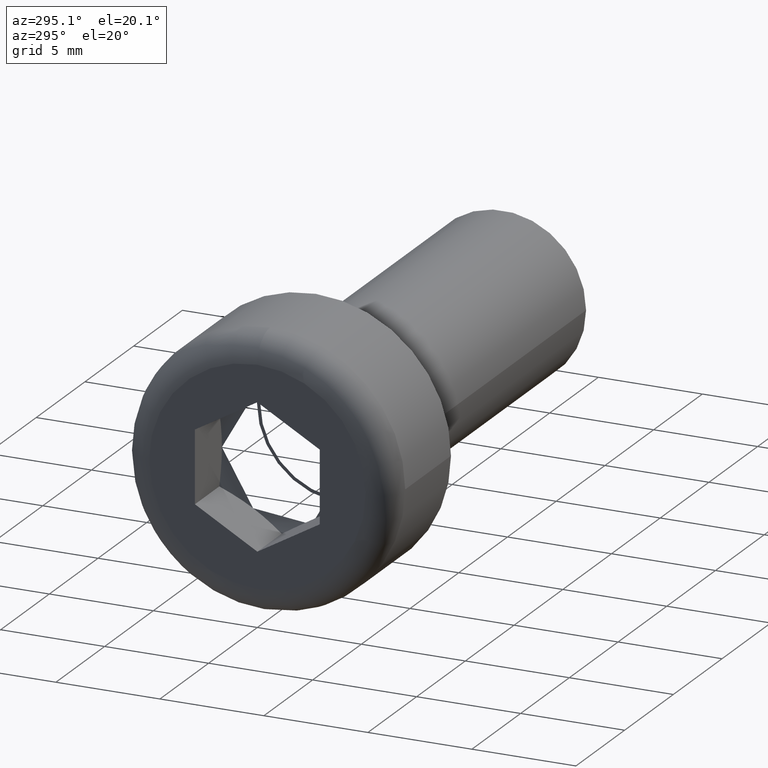
[diagram: clean part render]
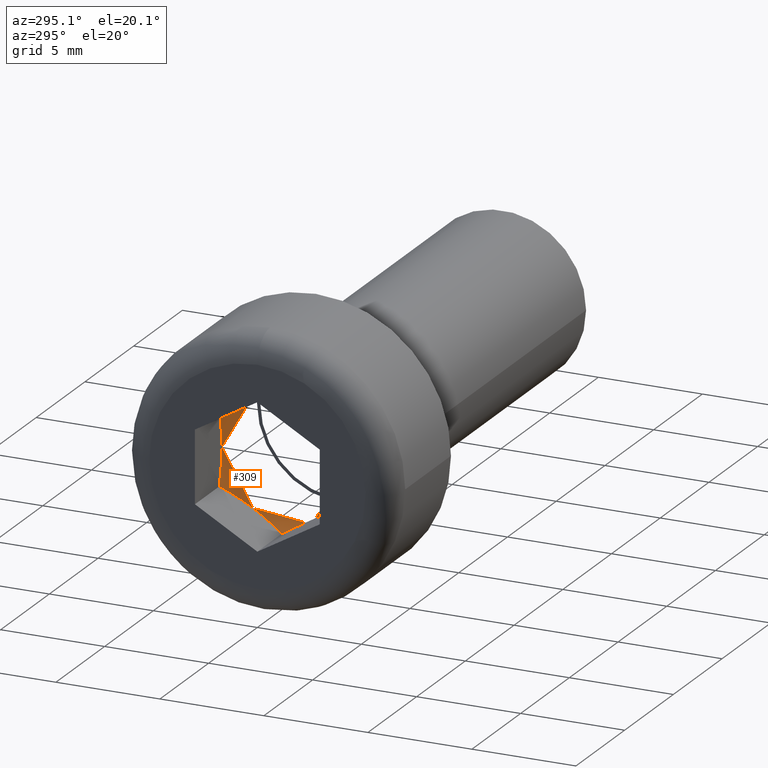
[diagram: same view with one face highlighted and labeled with its STEP entity id]
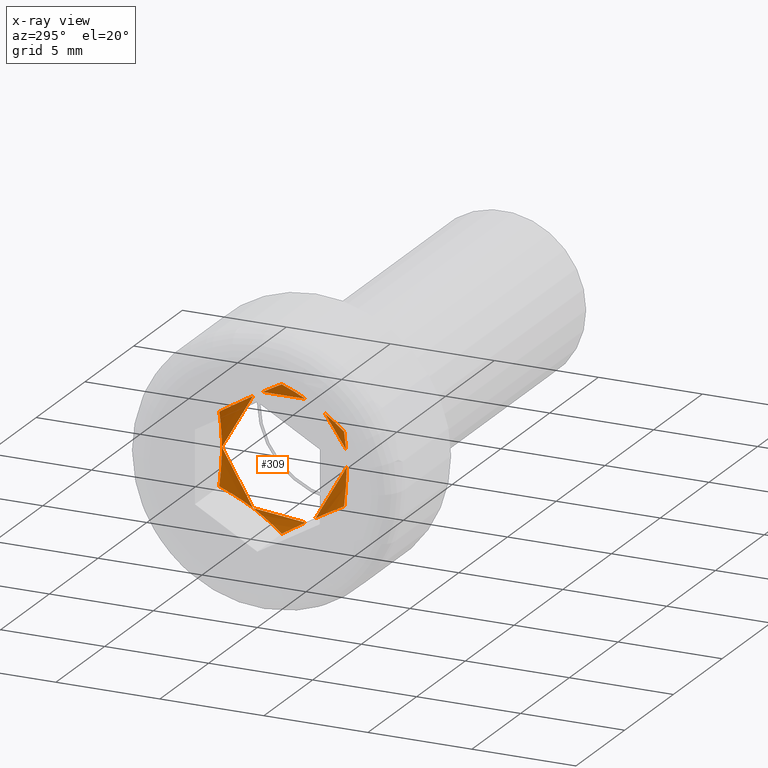
[diagram: x-ray of the same camera — body ghosted, the highlighted face saturated]
A machine part, auxiliary view. The second image highlights one B-rep face of the part: STEP entity #309.
The next image is the same camera in x-ray: the body ghosted, the highlighted face saturated — about 0% of this face is hidden behind the body in this view.
In plain terms, the highlighted conical surface has half-angle 60 deg.
Its self-contained STEP definition (entity closure, byte-faithful):
#42=CONICAL_SURFACE('',#346,1.8,1.0471975511966);
#51=FACE_OUTER_BOUND('',#68,.T.);
#68=EDGE_LOOP('',(#228,#229,#230,#231,#232,#233,#234,#235,#236));
#94=LINE('',#526,#112);
#112=VECTOR('',#405,1.8);
#118=(
BOUNDED_CURVE()
B_SPLINE_CURVE(2,(#475,#476,#477),.UNSPECIFIED.,.F.,.F.)
B_SPLINE_CURVE_WITH_KNOTS((3,3),(0.0224841371605266,0.381496060373957),
 .UNSPECIFIED.)
CURVE()
GEOMETRIC_REPRESENTATION_ITEM()
RATIONAL_B_SPLINE_CURVE((1.02102355330306,1.17897644669694,1.02102355330306))
REPRESENTATION_ITEM('')
);
#119=(
BOUNDED_CURVE()
B_SPLINE_CURVE(2,(#485,#486,#487),.UNSPECIFIED.,.F.,.F.)
B_SPLINE_CURVE_WITH_KNOTS((3,3),(0.0224841371605266,0.381496060373957),
 .UNSPECIFIED.)
CURVE()
GEOMETRIC_REPRESENTATION_ITEM()
RATIONAL_B_SPLINE_CURVE((1.02102355330306,1.17897644669694,1.02102355330306))
REPRESENTATION_ITEM('')
);
#120=(
BOUNDED_CURVE()
B_SPLINE_CURVE(2,(#493,#494,#495),.UNSPECIFIED.,.F.,.F.)
B_SPLINE_CURVE_WITH_KNOTS((3,3),(0.0224841371605264,0.381496060373957),
 .UNSPECIFIED.)
CURVE()
GEOMETRIC_REPRESENTATION_ITEM()
RATIONAL_B_SPLINE_CURVE((1.02102355330306,1.17897644669694,1.02102355330306))
REPRESENTATION_ITEM('')
);
#121=(
BOUNDED_CURVE()
B_SPLINE_CURVE(2,(#501,#502,#503),.UNSPECIFIED.,.F.,.F.)
B_SPLINE_CURVE_WITH_KNOTS((3,3),(0.0224841371605265,0.201990098767242),
 .UNSPECIFIED.)
CURVE()
GEOMETRIC_REPRESENTATION_ITEM()
RATIONAL_B_SPLINE_CURVE((1.02102355330306,1.1,1.1))
REPRESENTATION_ITEM('')
);
#122=(
BOUNDED_CURVE()
B_SPLINE_CURVE(2,(#508,#509,#510),.UNSPECIFIED.,.F.,.F.)
B_SPLINE_CURVE_WITH_KNOTS((3,3),(0.201990098767242,0.381496060373957),
 .UNSPECIFIED.)
CURVE()
GEOMETRIC_REPRESENTATION_ITEM()
RATIONAL_B_SPLINE_CURVE((1.1,1.1,1.02102355330306))
REPRESENTATION_ITEM('')
);
#123=(
BOUNDED_CURVE()
B_SPLINE_CURVE(2,(#513,#514,#515),.UNSPECIFIED.,.F.,.F.)
B_SPLINE_CURVE_WITH_KNOTS((3,3),(0.0224841371605265,0.381496060373957),
 .UNSPECIFIED.)
CURVE()
GEOMETRIC_REPRESENTATION_ITEM()
RATIONAL_B_SPLINE_CURVE((1.02102355330306,1.17897644669694,1.02102355330306))
REPRESENTATION_ITEM('')
);
#124=(
BOUNDED_CURVE()
B_SPLINE_CURVE(2,(#520,#521,#522),.UNSPECIFIED.,.F.,.F.)
B_SPLINE_CURVE_WITH_KNOTS((3,3),(0.0224841371605264,0.381496060373957),
 .UNSPECIFIED.)
CURVE()
GEOMETRIC_REPRESENTATION_ITEM()
RATIONAL_B_SPLINE_CURVE((1.02102355330306,1.17897644669695,1.02102355330306))
REPRESENTATION_ITEM('')
);
#125=VERTEX_POINT('',#473);
#126=VERTEX_POINT('',#474);
#129=VERTEX_POINT('',#484);
#131=VERTEX_POINT('',#492);
#133=VERTEX_POINT('',#500);
#135=VERTEX_POINT('',#506);
#136=VERTEX_POINT('',#512);
#138=VERTEX_POINT('',#525);
#158=EDGE_CURVE('',#125,#126,#118,.T.);
#162=EDGE_CURVE('',#129,#125,#119,.T.);
#165=EDGE_CURVE('',#131,#129,#120,.T.);
#168=EDGE_CURVE('',#126,#133,#121,.T.);
#171=EDGE_CURVE('',#133,#135,#122,.T.);
#172=EDGE_CURVE('',#135,#136,#123,.T.);
#175=EDGE_CURVE('',#136,#131,#124,.T.);
#177=EDGE_CURVE('',#138,#133,#94,.T.);
#228=ORIENTED_EDGE('',*,*,#177,.T.);
#229=ORIENTED_EDGE('',*,*,#171,.T.);
#230=ORIENTED_EDGE('',*,*,#172,.T.);
#231=ORIENTED_EDGE('',*,*,#175,.T.);
#232=ORIENTED_EDGE('',*,*,#165,.T.);
#233=ORIENTED_EDGE('',*,*,#162,.T.);
#234=ORIENTED_EDGE('',*,*,#158,.T.);
#235=ORIENTED_EDGE('',*,*,#168,.T.);
#236=ORIENTED_EDGE('',*,*,#177,.F.);
#309=ADVANCED_FACE('',(#51),#42,.F.);
#346=AXIS2_PLACEMENT_3D('',#524,#403,#404);
#403=DIRECTION('center_axis',(-1.,-2.29334027171402E-33,0.));
#404=DIRECTION('ref_axis',(0.,1.,0.));
#405=DIRECTION('',(-0.5,-0.866025403784438,-1.06057523872491E-16));
#473=CARTESIAN_POINT('',(2.5,-3.46944695195361E-16,-3.46410161513775));
#474=CARTESIAN_POINT('',(2.5,-3.,-1.73205080756888));
#475=CARTESIAN_POINT('Ctrl Pts',(2.5,-3.46944695195361E-16,-3.46410161513775));
#476=CARTESIAN_POINT('Ctrl Pts',(3.,-1.5,-2.59807621135332));
#477=CARTESIAN_POINT('Ctrl Pts',(2.5,-3.,-1.73205080756888));
#484=CARTESIAN_POINT('',(2.5,3.,-1.73205080756888));
#485=CARTESIAN_POINT('Ctrl Pts',(2.5,3.,-1.73205080756888));
#486=CARTESIAN_POINT('Ctrl Pts',(3.,1.5,-2.59807621135332));
#487=CARTESIAN_POINT('Ctrl Pts',(2.5,-3.46944695195361E-16,-3.46410161513775));
#492=CARTESIAN_POINT('',(2.5,3.,1.73205080756888));
#493=CARTESIAN_POINT('Ctrl Pts',(2.5,3.,1.73205080756888));
#494=CARTESIAN_POINT('Ctrl Pts',(3.,3.,-1.21430643318376E-16));
#495=CARTESIAN_POINT('Ctrl Pts',(2.5,3.,-1.73205080756888));
#500=CARTESIAN_POINT('',(2.76794919243112,-3.,-4.99101288231522E-16));
#501=CARTESIAN_POINT('Ctrl Pts',(2.5,-3.,-1.73205080756888));
#502=CARTESIAN_POINT('Ctrl Pts',(2.76794919243112,-3.,-0.803847577293368));
#503=CARTESIAN_POINT('Ctrl Pts',(2.76794919243112,-3.,-6.30808536718838E-16));
#506=CARTESIAN_POINT('',(2.5,-3.,1.73205080756888));
#508=CARTESIAN_POINT('Ctrl Pts',(2.76794919243112,-3.,-6.30808536718838E-16));
#509=CARTESIAN_POINT('Ctrl Pts',(2.76794919243112,-3.,0.803847577293367));
#510=CARTESIAN_POINT('Ctrl Pts',(2.5,-3.,1.73205080756888));
#512=CARTESIAN_POINT('',(2.5,-6.93889390390723E-17,3.46410161513775));
#513=CARTESIAN_POINT('Ctrl Pts',(2.5,-3.,1.73205080756888));
#514=CARTESIAN_POINT('Ctrl Pts',(3.,-1.5,2.59807621135332));
#515=CARTESIAN_POINT('Ctrl Pts',(2.5,-6.93889390390723E-17,3.46410161513775));
#520=CARTESIAN_POINT('Ctrl Pts',(2.5,-6.93889390390723E-17,3.46410161513775));
#521=CARTESIAN_POINT('Ctrl Pts',(3.,1.5,2.59807621135332));
#522=CARTESIAN_POINT('Ctrl Pts',(2.5,3.,1.73205080756888));
#524=CARTESIAN_POINT('Origin',(3.46076951545867,-2.3833091217915E-33,0.));
#525=CARTESIAN_POINT('',(4.5,0.,0.));
#526=CARTESIAN_POINT('',(3.46076951545867,-1.8,-2.20436423846524E-16));